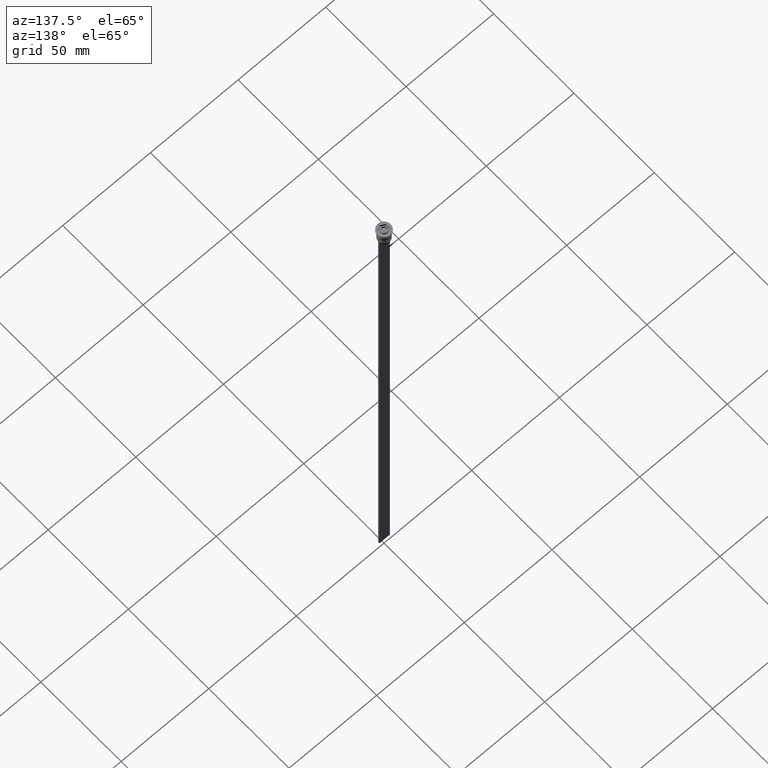
[diagram: clean part render]
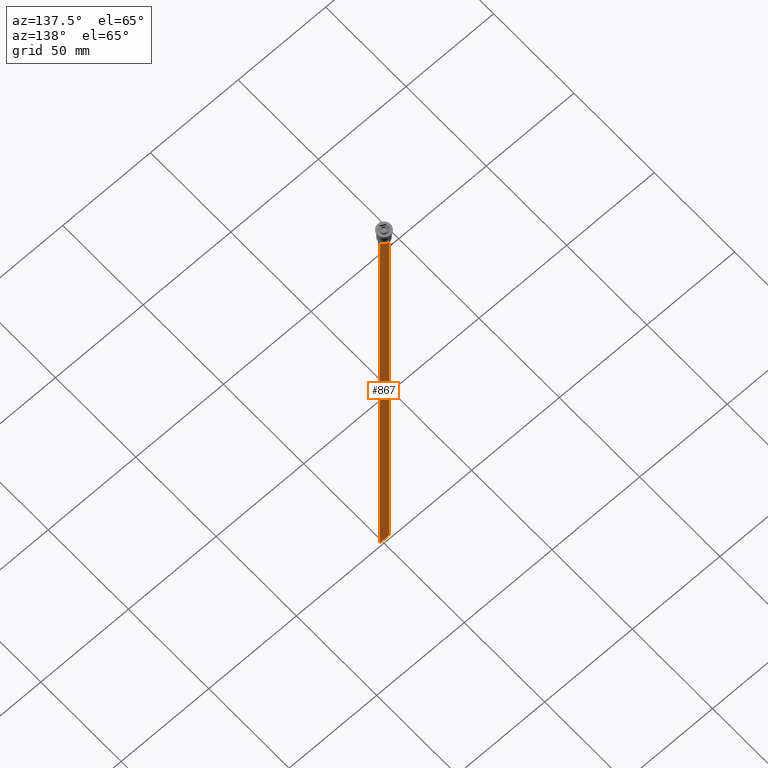
[diagram: same view with one face highlighted and labeled with its STEP entity id]
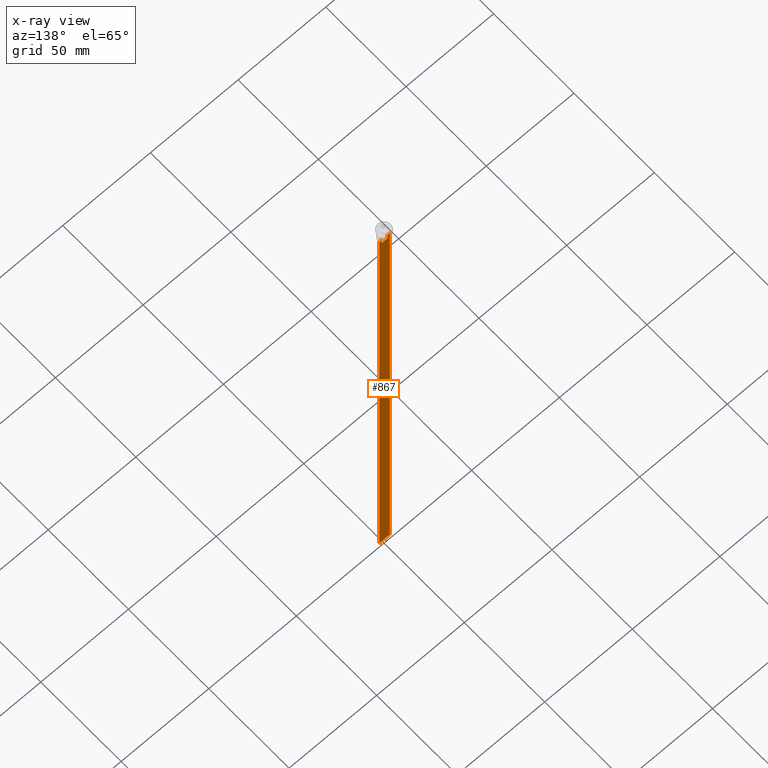
[diagram: x-ray of the same camera — body ghosted, the highlighted face saturated]
A machine part, auxiliary view. The second image highlights one B-rep face of the part: STEP entity #867.
The next image is the same camera in x-ray: the body ghosted, the highlighted face saturated — about 0% of this face is hidden behind the body in this view.
In plain terms, the highlighted planar face has unit normal (0, -1, -0).
Its self-contained STEP definition (entity closure, byte-faithful):
#22 = CARTESIAN_POINT ( 'NONE',  ( 2.121320343559647270, 0.3500000000000000333, -7.500000000000000000 ) ) ;
#30 = CARTESIAN_POINT ( 'NONE',  ( 1.612451549659713601, 0.3500000000000000333, -8.000000000000000000 ) ) ;
#54 = EDGE_CURVE ( 'NONE', #285, #2033, #844, .T. ) ;
#58 = EDGE_LOOP ( 'NONE', ( #1059, #1013, #193, #84, #1255, #1613, #233, #159, #1326, #838 ) ) ;
#84 = ORIENTED_EDGE ( 'NONE', *, *, #1928, .T. ) ;
#104 = DIRECTION ( 'NONE',  ( 1.000000000000000000, 0.000000000000000000, 0.000000000000000000 ) ) ;
#135 = CARTESIAN_POINT ( 'NONE',  ( 0.000000000000000000, 0.3500000000000000333, -10.49999999999999822 ) ) ;
#159 = ORIENTED_EDGE ( 'NONE', *, *, #960, .T. ) ;
#168 = VERTEX_POINT ( 'NONE', #1743 ) ;
#193 = ORIENTED_EDGE ( 'NONE', *, *, #1517, .T. ) ;
#196 = DIRECTION ( 'NONE',  ( 0.000000000000000000, 0.000000000000000000, -1.000000000000000000 ) ) ;
#201 = CARTESIAN_POINT ( 'NONE',  ( -1.782527878033863589, 0.3500000000000000333, -7.833794036819862860 ) ) ;
#211 = EDGE_CURVE ( 'NONE', #390, #2020, #1100, .T. ) ;
#220 = CARTESIAN_POINT ( 'NONE',  ( 2.999999999999995559, 0.3500000000000000333, -7.500000000000000000 ) ) ;
#224 = CARTESIAN_POINT ( 'NONE',  ( 2.999999999999995559, 0.3500000000000000333, -307.5000000000000000 ) ) ;
#230 = CARTESIAN_POINT ( 'NONE',  ( 2.999999999999995559, 0.3500000000000000333, -1.459304675784417915 ) ) ;
#233 = ORIENTED_EDGE ( 'NONE', *, *, #211, .T. ) ;
#275 = VERTEX_POINT ( 'NONE', #1471 ) ;
#285 = VERTEX_POINT ( 'NONE', #437 ) ;
#299 = CARTESIAN_POINT ( 'NONE',  ( 1.612451549659713601, 0.3500000000000000333, -8.000000000000000000 ) ) ;
#319 = VECTOR ( 'NONE', #584, 1000.000000000000000 ) ;
#363 = LINE ( 'NONE', #1057, #1032 ) ;
#365 = CARTESIAN_POINT ( 'NONE',  ( -3.000000000000004441, 0.3500000000000000333, -1.459304675784417915 ) ) ;
#373 = DIRECTION ( 'NONE',  ( 0.000000000000000000, -1.000000000000000000, -0.000000000000000000 ) ) ;
#390 = VERTEX_POINT ( 'NONE', #22 ) ;
#437 = CARTESIAN_POINT ( 'NONE',  ( -2.121320343559647270, 0.3500000000000000333, -7.500000000000000000 ) ) ;
#463 = EDGE_CURVE ( 'NONE', #275, #285, #1550, .T. ) ;
#465 = CARTESIAN_POINT ( 'NONE',  ( -1.612451549659713601, 0.3500000000000000333, 0.000000000000000000 ) ) ;
#566 = VECTOR ( 'NONE', #2164, 1000.000000000000000 ) ;
#584 = DIRECTION ( 'NONE',  ( 0.000000000000000000, 0.000000000000000000, -1.000000000000000000 ) ) ;
#737 = CARTESIAN_POINT ( 'NONE',  ( 1.782523989086206795, 0.3500000000000000333, -7.833797837268088315 ) ) ;
#819 = AXIS2_PLACEMENT_3D ( 'NONE', #230, #373, #889 ) ;
#838 = ORIENTED_EDGE ( 'NONE', *, *, #845, .F. ) ;
#843 = LINE ( 'NONE', #465, #566 ) ;
#844 = B_SPLINE_CURVE_WITH_KNOTS ( 'NONE', 3,
 ( #1389, #2018, #201, #1541 ),
 .UNSPECIFIED., .F., .F.,
 ( 4, 4 ),
 ( 0.003684653461239336628, 0.004398058763641255961 ),
 .UNSPECIFIED. ) ;
#845 = EDGE_CURVE ( 'NONE', #275, #168, #869, .T. ) ;
#855 = EDGE_CURVE ( 'NONE', #1779, #168, #876, .T. ) ;
#867 = ADVANCED_FACE ( 'NONE', ( #1899 ), #2059, .F. ) ;
#869 = LINE ( 'NONE', #365, #928 ) ;
#876 = LINE ( 'NONE', #1737, #1480 ) ;
#879 = EDGE_CURVE ( 'NONE', #1975, #390, #1795, .T. ) ;
#889 = DIRECTION ( 'NONE',  ( 0.000000000000000000, 0.000000000000000000, -1.000000000000000000 ) ) ;
#913 = CARTESIAN_POINT ( 'NONE',  ( 1.952040775369266346, 0.3500000000000000333, -7.667021484535463394 ) ) ;
#928 = VECTOR ( 'NONE', #196, 1000.000000000000000 ) ;
#959 = CARTESIAN_POINT ( 'NONE',  ( 2.999999999999995559, 0.3500000000000000333, -7.500000000000000000 ) ) ;
#960 = EDGE_CURVE ( 'NONE', #2020, #1779, #1443, .T. ) ;
#994 = VECTOR ( 'NONE', #104, 1000.000000000000000 ) ;
#1013 = ORIENTED_EDGE ( 'NONE', *, *, #54, .T. ) ;
#1032 = VECTOR ( 'NONE', #1049, 1000.000000000000000 ) ;
#1049 = DIRECTION ( 'NONE',  ( -0.000000000000000000, -0.000000000000000000, 1.000000000000000000 ) ) ;
#1057 = CARTESIAN_POINT ( 'NONE',  ( 1.612451549659713601, 0.3500000000000000333, 0.000000000000000000 ) ) ;
#1059 = ORIENTED_EDGE ( 'NONE', *, *, #463, .T. ) ;
#1100 = LINE ( 'NONE', #1624, #994 ) ;
#1151 = VERTEX_POINT ( 'NONE', #1489 ) ;
#1219 = DIRECTION ( 'NONE',  ( 1.000000000000000000, 0.000000000000000000, 0.000000000000000000 ) ) ;
#1255 = ORIENTED_EDGE ( 'NONE', *, *, #1307, .T. ) ;
#1306 = LINE ( 'NONE', #135, #1798 ) ;
#1307 = EDGE_CURVE ( 'NONE', #1151, #1975, #363, .T. ) ;
#1326 = ORIENTED_EDGE ( 'NONE', *, *, #855, .T. ) ;
#1389 = CARTESIAN_POINT ( 'NONE',  ( -2.121320343559647270, 0.3500000000000000333, -7.500000000000000000 ) ) ;
#1434 = CARTESIAN_POINT ( 'NONE',  ( 2.999999999999995559, 0.3500000000000000333, -1.459304675784417915 ) ) ;
#1443 = LINE ( 'NONE', #1434, #319 ) ;
#1453 = CARTESIAN_POINT ( 'NONE',  ( -1.612451549659713601, 0.3500000000000000333, -10.49999999999999822 ) ) ;
#1455 = VERTEX_POINT ( 'NONE', #1453 ) ;
#1471 = CARTESIAN_POINT ( 'NONE',  ( -3.000000000000004441, 0.3499999999999999223, -7.500000000000000000 ) ) ;
#1480 = VECTOR ( 'NONE', #1535, 1000.000000000000000 ) ;
#1481 = DIRECTION ( 'NONE',  ( 1.000000000000000000, 0.000000000000000000, 0.000000000000000000 ) ) ;
#1489 = CARTESIAN_POINT ( 'NONE',  ( 1.612451549659713601, 0.3500000000000000333, -10.49999999999999822 ) ) ;
#1517 = EDGE_CURVE ( 'NONE', #2033, #1455, #843, .T. ) ;
#1528 = CARTESIAN_POINT ( 'NONE',  ( 2.121320343559647270, 0.3500000000000000333, -7.500000000000000000 ) ) ;
#1535 = DIRECTION ( 'NONE',  ( -1.000000000000000000, 0.000000000000000000, 0.000000000000000000 ) ) ;
#1541 = CARTESIAN_POINT ( 'NONE',  ( -1.612451549659713601, 0.3500000000000000333, -8.000000000000000000 ) ) ;
#1550 = LINE ( 'NONE', #220, #1893 ) ;
#1613 = ORIENTED_EDGE ( 'NONE', *, *, #879, .T. ) ;
#1624 = CARTESIAN_POINT ( 'NONE',  ( 2.999999999999995559, 0.3500000000000000333, -7.500000000000000000 ) ) ;
#1737 = CARTESIAN_POINT ( 'NONE',  ( 2.999999999999995559, 0.3500000000000000333, -307.5000000000000000 ) ) ;
#1743 = CARTESIAN_POINT ( 'NONE',  ( -3.000000000000004441, 0.3500000000000000333, -307.5000000000000000 ) ) ;
#1779 = VERTEX_POINT ( 'NONE', #224 ) ;
#1795 = B_SPLINE_CURVE_WITH_KNOTS ( 'NONE', 3,
 ( #30, #737, #913, #1528 ),
 .UNSPECIFIED., .F., .F.,
 ( 4, 4 ),
 ( 0.008600796474521226961, 0.009317962624906524910 ),
 .UNSPECIFIED. ) ;
#1798 = VECTOR ( 'NONE', #1481, 1000.000000000000000 ) ;
#1812 = CARTESIAN_POINT ( 'NONE',  ( -1.612451549659713601, 0.3500000000000000333, -8.000000000000000000 ) ) ;
#1893 = VECTOR ( 'NONE', #1219, 1000.000000000000000 ) ;
#1899 = FACE_OUTER_BOUND ( 'NONE', #58, .T. ) ;
#1928 = EDGE_CURVE ( 'NONE', #1455, #1151, #1306, .T. ) ;
#1975 = VERTEX_POINT ( 'NONE', #299 ) ;
#2018 = CARTESIAN_POINT ( 'NONE',  ( -1.952043732028445167, 0.3500000000000000333, -7.667018567316270961 ) ) ;
#2020 = VERTEX_POINT ( 'NONE', #959 ) ;
#2033 = VERTEX_POINT ( 'NONE', #1812 ) ;
#2059 = PLANE ( 'NONE',  #819 ) ;
#2164 = DIRECTION ( 'NONE',  ( 0.000000000000000000, 0.000000000000000000, -1.000000000000000000 ) ) ;